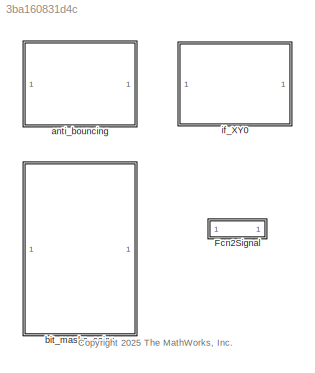
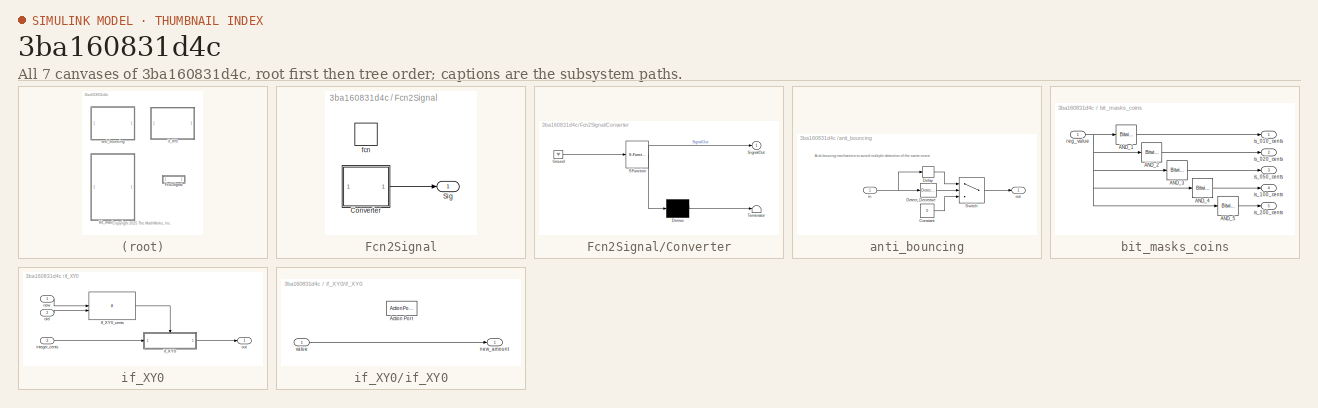
[diagram: thumbnail index - all 7 canvases of the model, root first then tree order]
MODEL slx_3ba160831d4c
KIND library
CONFIG AbsTol = auto
CONFIG EnableMultiTasking = off
CONFIG FixedStep = auto
CONFIG MaxStep = auto
CONFIG MinStep = auto
CONFIG RelTol = 1e-3
CONFIG SampleTimeConstraint = Unconstrained
CONFIG SolverName = VariableStepAuto
CONFIG StartTime = 0.0
CONFIG StopTime = 10.0
BLOCK [SubSystem] Fcn2Signal
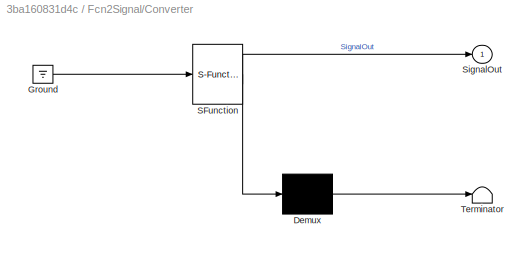
BLOCK [SubSystem] Fcn2Signal/Converter
  BlockKeywords = __PRM__SERIALIZED__DATA__:Stateflow Chart,Stateflow Diagram
  ErrorFcn = Stateflow.Translate.translate
  PermitHierarchicalResolution = ExplicitOnly
  SFBlockType = Chart
  TreatAsAtomicUnit = on
BLOCK [Demux] Fcn2Signal/Converter/ Demux 
  Outputs = 1
BLOCK [Ground] Fcn2Signal/Converter/ Ground 
BLOCK [S-Function] Fcn2Signal/Converter/ SFunction 
  EnableBusSupport = off
  FunctionName = sf_sfun
  PortCounts = [1 2]
  SFcnIsStateOwnerBlock = off
  SFunctionDeploymentMode = off
  Tag = Stateflow S-Function 3
BLOCK [Terminator] Fcn2Signal/Converter/ Terminator 
BLOCK [Outport] Fcn2Signal/Converter/SignalOut
  VectorParamsAs1DForOutWhenUnconnected = off
BLOCK [Outport] Fcn2Signal/Sig
  InitialOutput = false
  OutDataTypeStr = boolean
  VectorParamsAs1DForOutWhenUnconnected = off
BLOCK [TriggerPort] Fcn2Signal/fcn
  SampleTime = -1
  StatesWhenEnabling = held
  TriggerType = function-call
  VariantControl = Variant
BLOCK [SubSystem] anti_bouncing
BLOCK [Constant] anti_bouncing/Constant
  OutDataTypeStr = uint8
  SampleTime = -1
  Value = 0
BLOCK [Delay] anti_bouncing/Delay
  DelayLength = 1
  InitialCondition = 0
  InputPortMap = u0
BLOCK [Reference] anti_bouncing/Detect_Decrease  REF=simulink/Logic and Bit
Operations/Detect
Decrease
  SourceBlock = simulink/Logic and Bit\nOperations/Detect\nDecrease
  SourceType = Detect Decrease
BLOCK [Switch] anti_bouncing/Switch
  Criteria = u2 > Threshold
  InputSameDT = off
  SaturateOnIntegerOverflow = off
BLOCK [Inport] anti_bouncing/in
BLOCK [Outport] anti_bouncing/out
  VectorParamsAs1DForOutWhenUnconnected = off
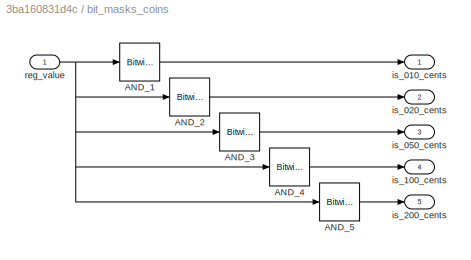
BLOCK [SubSystem] bit_masks_coins
BLOCK [Reference] bit_masks_coins/AND_1  REF=simulink/Logic and Bit
Operations/Bitwise
Operator
  SourceBlock = simulink/Logic and Bit\nOperations/Bitwise\nOperator
  SourceType = Bitwise Operator
BLOCK [Reference] bit_masks_coins/AND_2  REF=simulink/Logic and Bit
Operations/Bitwise
Operator
  SourceBlock = simulink/Logic and Bit\nOperations/Bitwise\nOperator
  SourceType = Bitwise Operator
BLOCK [Reference] bit_masks_coins/AND_3  REF=simulink/Logic and Bit
Operations/Bitwise
Operator
  SourceBlock = simulink/Logic and Bit\nOperations/Bitwise\nOperator
  SourceType = Bitwise Operator
BLOCK [Reference] bit_masks_coins/AND_4  REF=simulink/Logic and Bit
Operations/Bitwise
Operator
  SourceBlock = simulink/Logic and Bit\nOperations/Bitwise\nOperator
  SourceType = Bitwise Operator
BLOCK [Reference] bit_masks_coins/AND_5  REF=simulink/Logic and Bit
Operations/Bitwise
Operator
  SourceBlock = simulink/Logic and Bit\nOperations/Bitwise\nOperator
  SourceType = Bitwise Operator
BLOCK [Outport] bit_masks_coins/is_010_cents
  VectorParamsAs1DForOutWhenUnconnected = off
BLOCK [Outport] bit_masks_coins/is_020_cents
  Port = 2
  VectorParamsAs1DForOutWhenUnconnected = off
BLOCK [Outport] bit_masks_coins/is_050_cents
  Port = 3
  VectorParamsAs1DForOutWhenUnconnected = off
BLOCK [Outport] bit_masks_coins/is_100_cents
  Port = 4
  VectorParamsAs1DForOutWhenUnconnected = off
BLOCK [Outport] bit_masks_coins/is_200_cents
  Port = 5
  VectorParamsAs1DForOutWhenUnconnected = off
BLOCK [Inport] bit_masks_coins/reg_value
BLOCK [SubSystem] if_XY0
BLOCK [If] if_XY0/If_XY0_cents
  IfExpression = (u1 ~= 0) & (u2 == 0)
  NumInputs = 2
  ShowElse = off
BLOCK [SubSystem] if_XY0/if_XY0
  TreatAsAtomicUnit = on
BLOCK [ActionPort] if_XY0/if_XY0/Action Port
BLOCK [Outport] if_XY0/if_XY0/new_amount
  VectorParamsAs1DForOutWhenUnconnected = off
BLOCK [Inport] if_XY0/if_XY0/value
BLOCK [Inport] if_XY0/integer_cents
  Port = 3
BLOCK [Inport] if_XY0/new
BLOCK [Inport] if_XY0/old
  Port = 2
BLOCK [Outport] if_XY0/out
  VectorParamsAs1DForOutWhenUnconnected = off
ANNOTATION (root): <copyright redacted>
ANNOTATION anti_bouncing: Anti-boucing mechanism to avoid multiple detection of the same event
LINE Fcn2Signal/Converter:1 -> Fcn2Signal/Sig:1
LINE anti_bouncing/Constant:1 -> anti_bouncing/Switch:3
LINE anti_bouncing/Delay:1 -> anti_bouncing/Switch:1
LINE anti_bouncing/Detect_Decrease:1 -> anti_bouncing/Switch:2
LINE anti_bouncing/Switch:1 -> anti_bouncing/out:1
NET anti_bouncing/in:1 -> anti_bouncing/Delay:1, anti_bouncing/Detect_Decrease:1
LINE bit_masks_coins/AND_1:1 -> bit_masks_coins/is_010_cents:1
LINE bit_masks_coins/AND_2:1 -> bit_masks_coins/is_020_cents:1
LINE bit_masks_coins/AND_3:1 -> bit_masks_coins/is_050_cents:1
LINE bit_masks_coins/AND_4:1 -> bit_masks_coins/is_100_cents:1
LINE bit_masks_coins/AND_5:1 -> bit_masks_coins/is_200_cents:1
NET bit_masks_coins/reg_value:1 -> bit_masks_coins/AND_1:1, bit_masks_coins/AND_2:1, bit_masks_coins/AND_3:1, bit_masks_coins/AND_4:1, bit_masks_coins/AND_5:1
LINE if_XY0/If_XY0_cents:1 -> if_XY0/if_XY0:ifaction
LINE if_XY0/if_XY0/value:1 -> if_XY0/if_XY0/new_amount:1
LINE if_XY0/if_XY0:1 -> if_XY0/out:1
LINE if_XY0/integer_cents:1 -> if_XY0/if_XY0:1
LINE if_XY0/new:1 -> if_XY0/If_XY0_cents:1
LINE if_XY0/old:1 -> if_XY0/If_XY0_cents:2
note: NET lines group one-source signal fan-out (src -> all destinations, sorted); 1:1 wires keep LINE
CHART Fcn2Signal/Converter states=2 transitions=3
  STATE_LABEL 'Up\nentry:\nSignalOut = true;'
  STATE_LABEL 'Down\nentry:\nSignalOut = false;'
CHART  states=0 transitions=0
